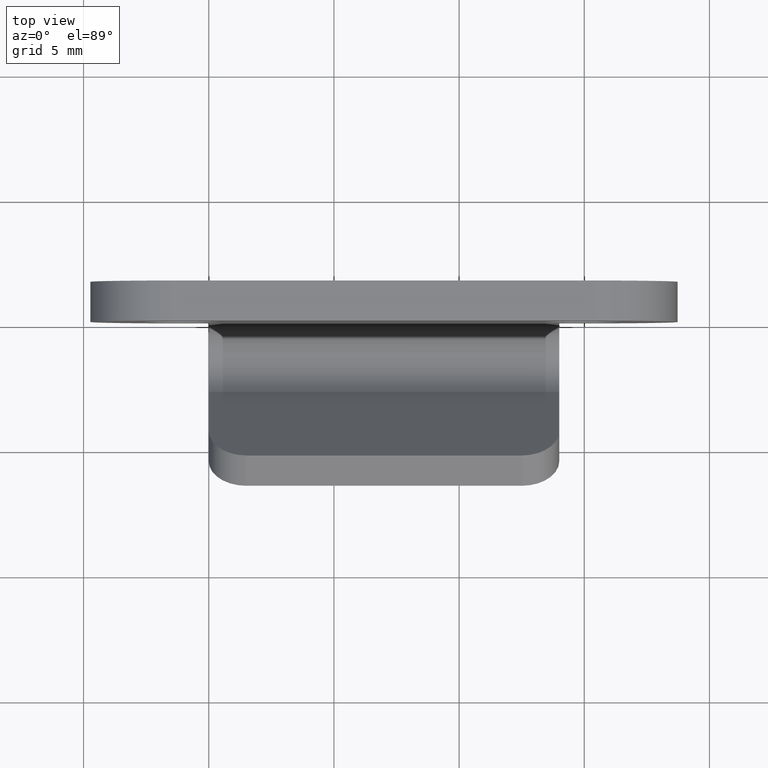
[diagram: clean part render]
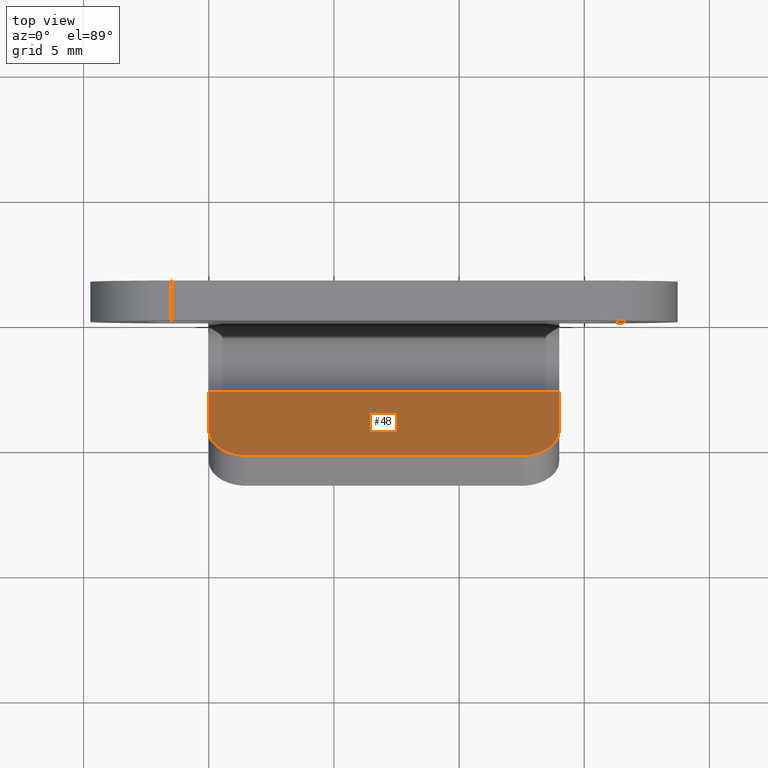
[diagram: same view with one face highlighted and labeled with its STEP entity id]
A machine part, top view. The second image highlights one B-rep face of the part: STEP entity #48.
In plain terms, the highlighted planar face has unit normal (-0, 0.746, 0.666).
Its self-contained STEP definition (entity closure, byte-faithful):
#48=ADVANCED_FACE('',(#143),#142,.T.);
#142=PLANE('',#309);
#143=FACE_OUTER_BOUND('',#310,.T.);
#306=CARTESIAN_POINT('',(-1.64000000000E+01,-5.46571613107E+00,-6.96010618876E+00));
#307=DIRECTION('',(-0.00000000000E+00,7.45988575320E-01,6.65958741584E-01));
#308=DIRECTION('',(1.00000000000E+00,0.00000000000E+00,0.00000000000E+00));
#309=AXIS2_PLACEMENT_3D('',#306,#307,#308);
#310=EDGE_LOOP('',(#412,#413,#414,#415,#416,#417));
#412=ORIENTED_EDGE('',*,*,#511,.T.);
#413=ORIENTED_EDGE('',*,*,#493,.T.);
#414=ORIENTED_EDGE('',*,*,#512,.T.);
#415=ORIENTED_EDGE('',*,*,#509,.F.);
#416=ORIENTED_EDGE('',*,*,#480,.F.);
#417=ORIENTED_EDGE('',*,*,#478,.F.);
#478=EDGE_CURVE('',#538,#545,#546,.T.);
#480=EDGE_CURVE('',#545,#558,#559,.T.);
#493=EDGE_CURVE('',#649,#642,#650,.T.);
#509=EDGE_CURVE('',#558,#756,#757,.T.);
#511=EDGE_CURVE('',#538,#649,#769,.T.);
#512=EDGE_CURVE('',#642,#756,#775,.T.);
#538=VERTEX_POINT('',#896);
#545=VERTEX_POINT('',#900);
#546=CIRCLE('',#904,1.50000000000E+00);
#558=VERTEX_POINT('',#908);
#559=LINE('',#909,#910);
#642=VERTEX_POINT('',#959);
#649=VERTEX_POINT('',#963);
#650=CIRCLE('',#967,1.50000000000E+00);
#756=VERTEX_POINT('',#1030);
#757=LINE('',#1031,#1032);
#769=LINE('',#1038,#1039);
#775=LINE('',#1041,#1042);
#896=CARTESIAN_POINT('',(-1.35000000000E+01,-5.20692219760E+00,-7.25000000000E+00));
#900=CARTESIAN_POINT('',(-1.50000000000E+01,-4.20798408523E+00,-8.36898286298E+00));
#901=CARTESIAN_POINT('',(-1.35000000000E+01,-4.20798408523E+00,-8.36898286298E+00));
#902=DIRECTION('',(1.38458844419E-15,-7.45988575320E-01,-6.65958741584E-01));
#903=DIRECTION('',(-1.65793305011E-14,6.65958741584E-01,-7.45988575320E-01));
#904=AXIS2_PLACEMENT_3D('',#901,#902,#903);
#908=CARTESIAN_POINT('',(-1.50000000000E+01,-2.61898286298E+00,-1.01489381124E+01));
#909=CARTESIAN_POINT('',(-1.50000000000E+01,-4.20798408523E+00,-8.36898286298E+00));
#910=VECTOR('',#911,2.38603553497E+00);
#911=DIRECTION('',(-2.93325302354E-13,6.65958741584E-01,-7.45988575320E-01));
#959=CARTESIAN_POINT('',(-9.99999999997E-01,-4.20798408523E+00,-8.36898286298E+00));
#963=CARTESIAN_POINT('',(-2.50000000000E+00,-5.20692219760E+00,-7.25000000000E+00));
#964=CARTESIAN_POINT('',(-2.50000000000E+00,-4.20798408523E+00,-8.36898286298E+00));
#965=DIRECTION('',(1.38458844419E-15,7.45988575320E-01,6.65958741584E-01));
#966=DIRECTION('',(2.39808173319E-14,6.65958741584E-01,-7.45988575320E-01));
#967=AXIS2_PLACEMENT_3D('',#964,#965,#966);
#1030=CARTESIAN_POINT('',(-9.99999999996E-01,-2.61898286298E+00,-1.01489381124E+01));
#1031=CARTESIAN_POINT('',(-1.50000000000E+01,-2.61898286298E+00,-1.01489381124E+01));
#1032=VECTOR('',#1033,1.40000000000E+01);
#1033=DIRECTION('',(1.00000000000E+00,0.00000000000E+00,0.00000000000E+00));
#1038=CARTESIAN_POINT('',(-1.35000000000E+01,-5.20692219760E+00,-7.25000000000E+00));
#1039=VECTOR('',#1040,1.10000000000E+01);
#1040=DIRECTION('',(1.00000000000E+00,0.00000000000E+00,0.00000000000E+00));
#1041=CARTESIAN_POINT('',(-9.99999999997E-01,-4.20798408523E+00,-8.36898286298E+00));
#1042=VECTOR('',#1043,2.38603553497E+00);
#1043=DIRECTION('',(2.92115521602E-13,6.65958741584E-01,-7.45988575320E-01));